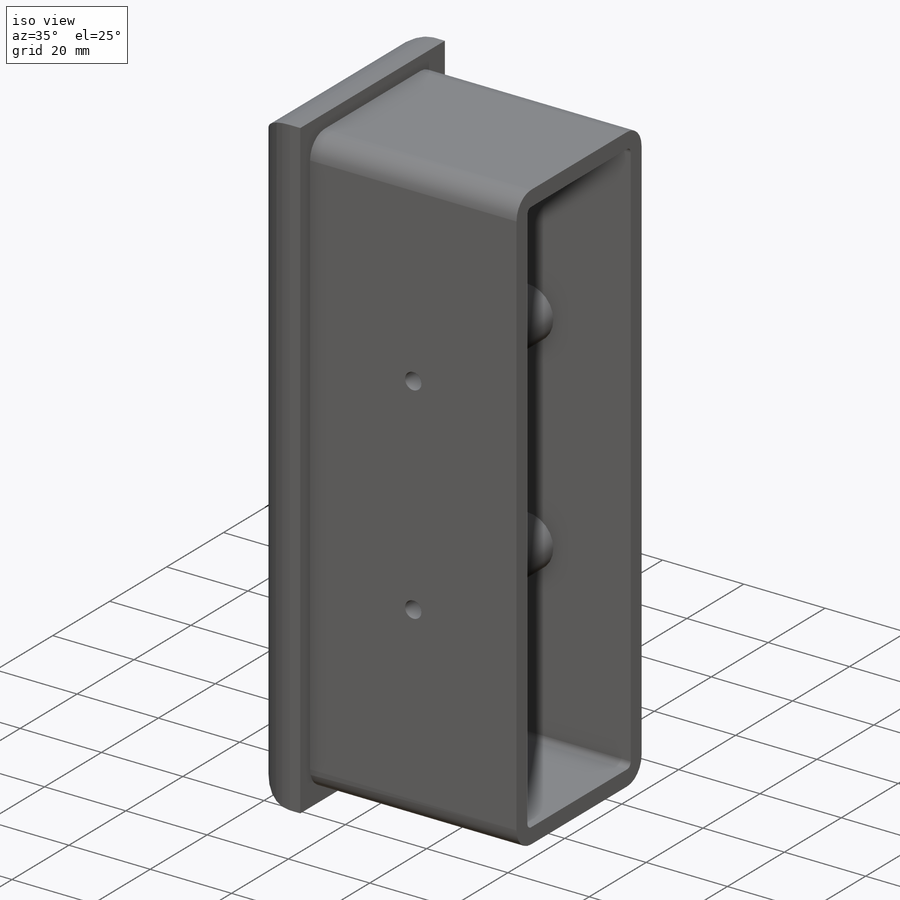
[diagram: iso view]
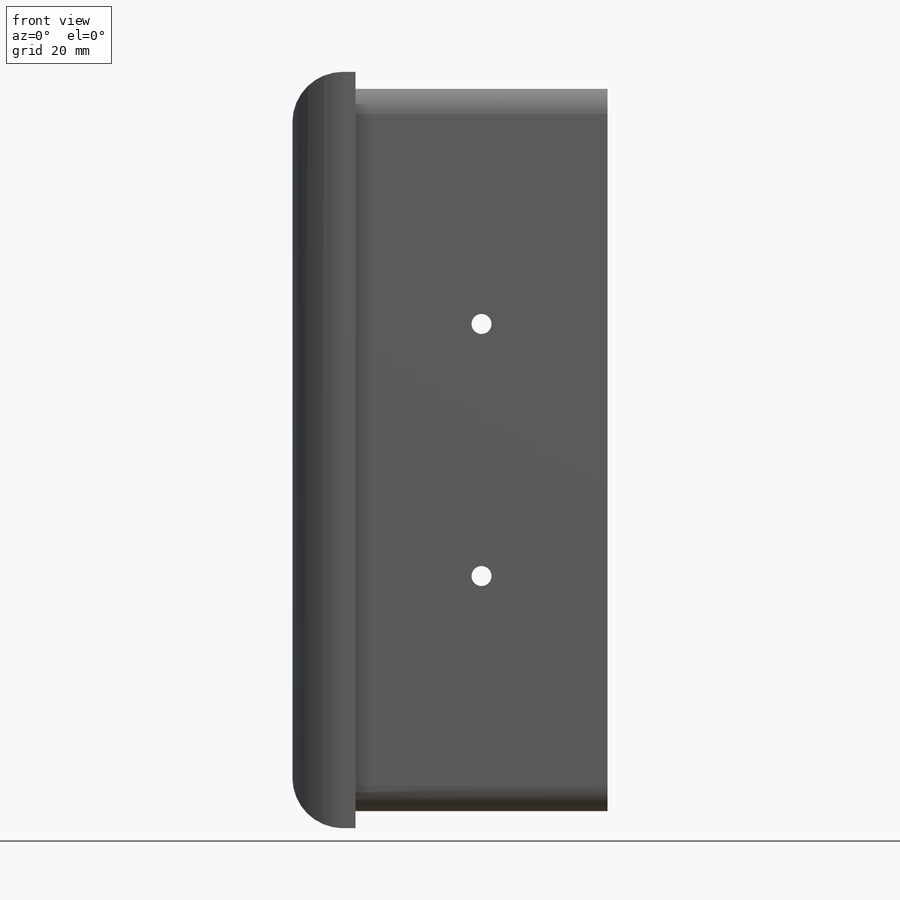
[diagram: front view]
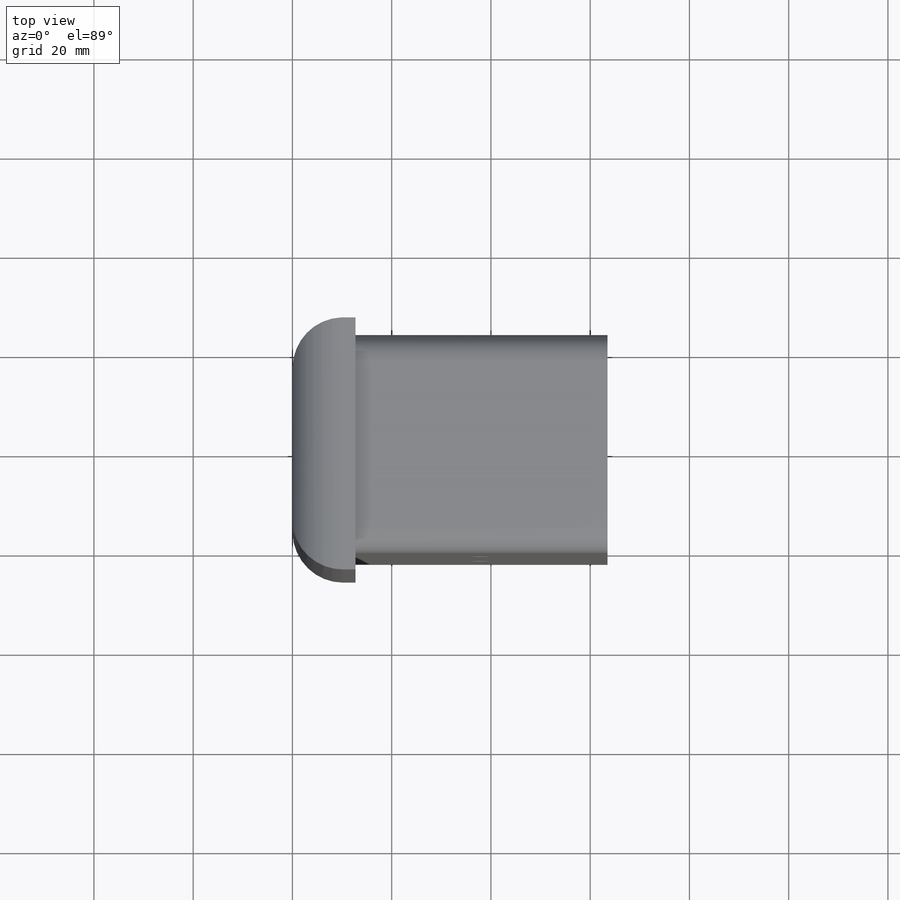
[diagram: top view]
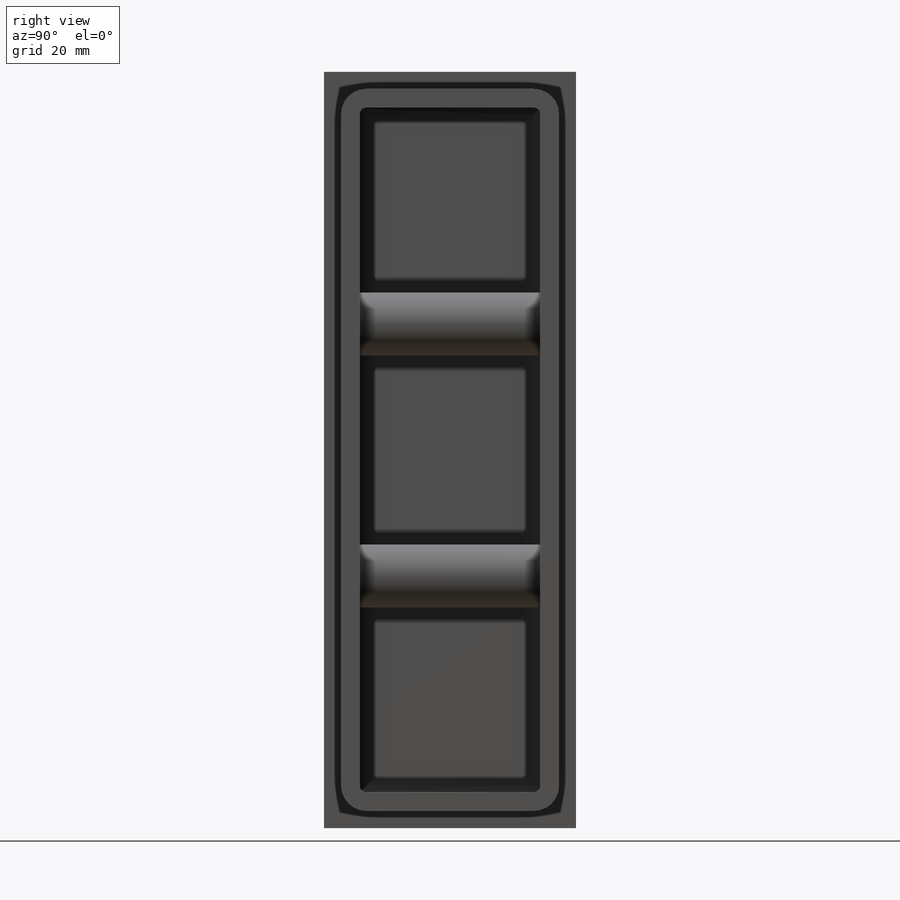
[diagram: right view]
SOLIDWORKS PART (.sldprt)
format: sldprt  version: not decoded by parser v0  size: 299,008 bytes
history: native  units: mm
features: sketch x5, extrude x3, fillet x2, material x1, shell x1, hole x1, thread x1, mirror x1 (+11 scaffold rows collapsed)
feature tree (26):
  scaffold x11  (default folders/planes/origin — collapsed)
  material  "Nylon 101"
  sketch  "Sketch1"  dims[D1=152.4mm D2=50.8mm]
  extrude  "Boss-Extrude1"  Depth=12.7mm
  sketch  "Sketch3"  dims[D1=43.942mm D2=145.542mm]
  extrude  "Boss-Extrude2"  Depth=50.8mm
  fillet  "Fillet1"  Radius=5.08mm
  fillet  "Fillet2"  Radius=10.16mm
  shell  "Shell1"  Thickness=3.81mm
  sketch  "Sketch4"  dims[D2=12.7mm D1=25.4mm]
  extrude  "Boss-Extrude3"  [1 undecoded]
  hole  "#10-32 Tapped Hole1"  Diameter=4.0386mm Depth=47.371mm
  sketch  "Sketch6"
  sketch  "Sketch5"  dims[hole-wizard template sketch: 60 standard entries collapsed; hole parameters kept: c18.Thru Tap Drill Depth=47.371mm]
  thread  "Hole Thread1"  Diameter=4.826mm  [1 undecoded]
  mirror  "Mirror1"
decode coverage: 11 of 14 modeling features carry decoded parameters
note: ~ marks probable driven/reference dimensions
note: 2 parameter values undecoded
note: suppression state not decoded; provenance and decode notes live in map.json
